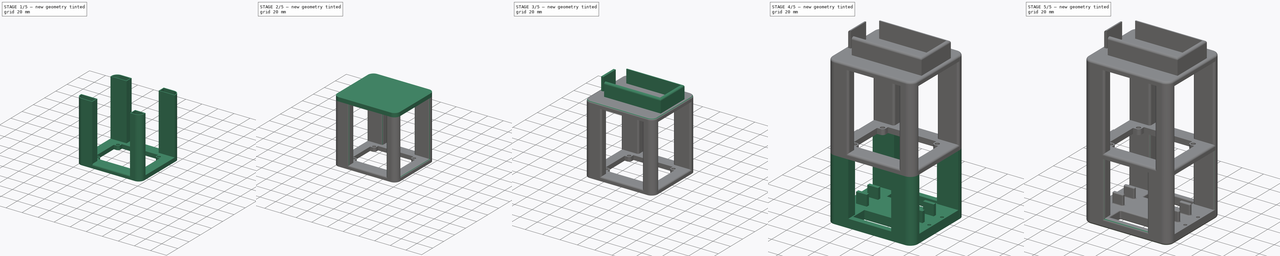
[diagram: build sequence overview — one tinted view per stage of 5, left to right]
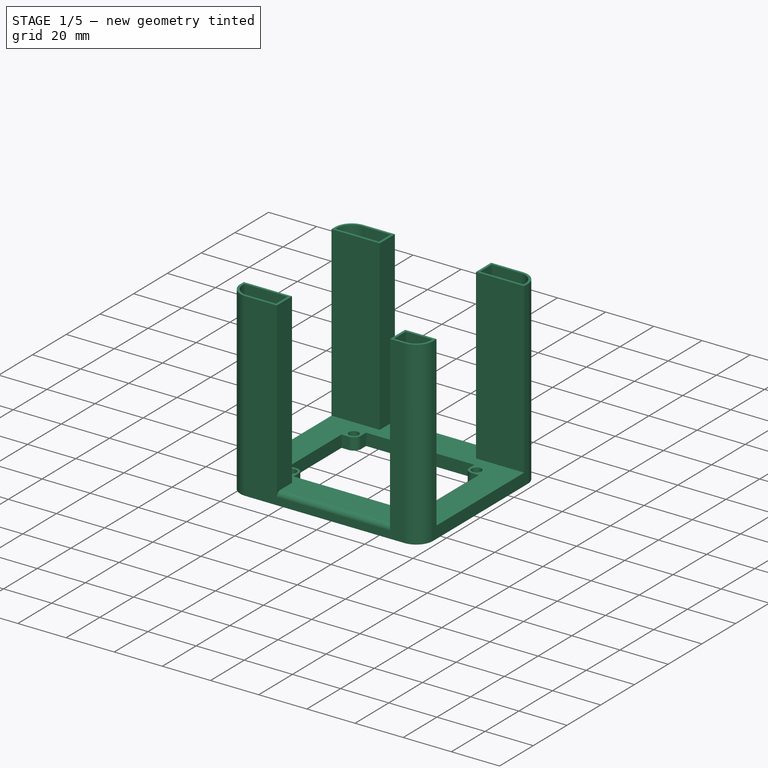
[diagram: stage 1 of 5 — iso view after this stage's code; geometry added in this stage tinted green]
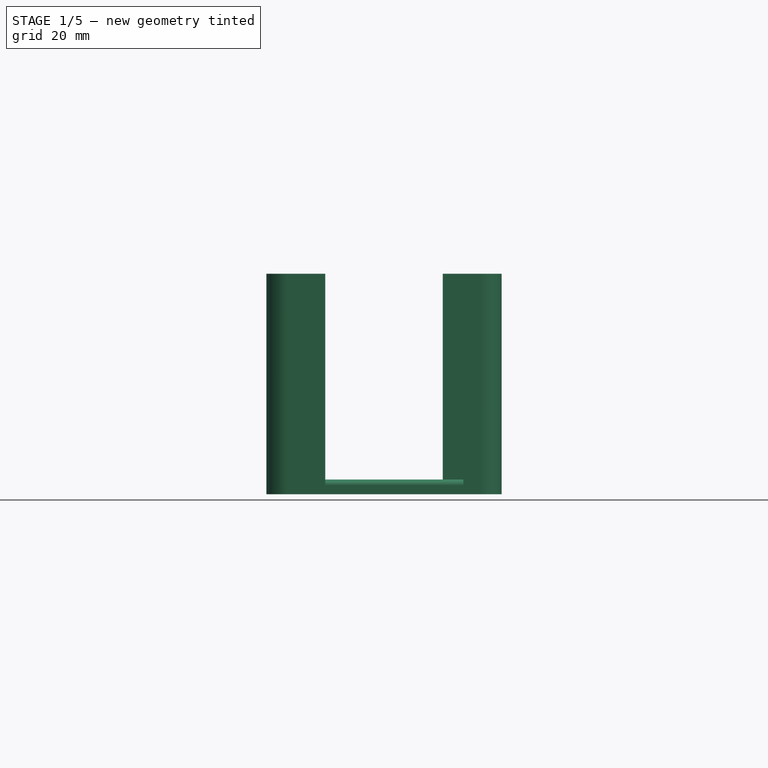
[diagram: stage 1 of 5 — front view after this stage's code; geometry added in this stage tinted green]
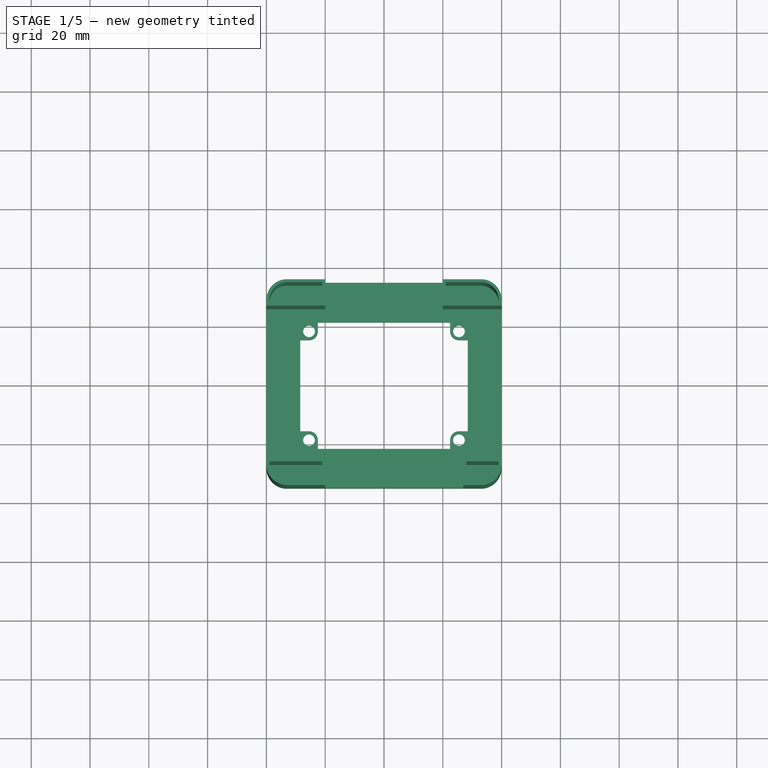
[diagram: stage 1 of 5 — top view after this stage's code; geometry added in this stage tinted green]
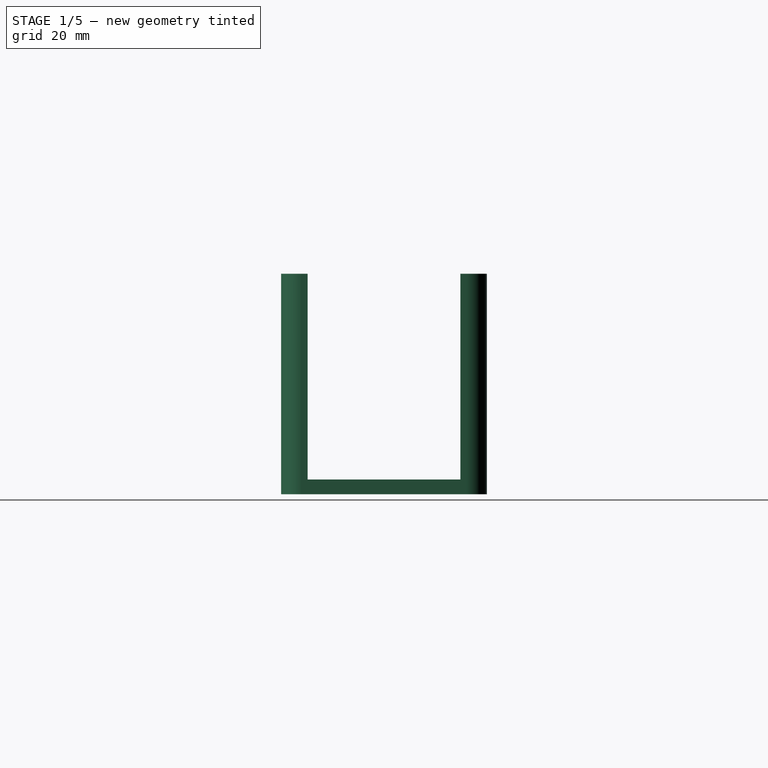
[diagram: stage 1 of 5 — right view after this stage's code; geometry added in this stage tinted green]
FCSTD DOCUMENT  (FreeCAD 0.18.4R)
Label: model
License: All rights reserved
LicenseURL: http://en.wikipedia.org/wiki/All_rights_reserved
objects: PartDesign::Fillet×12, Sketcher::SketchObject×10, PartDesign::Plane×8, PartDesign::Pad×7, PartDesign::Pocket×3, PartDesign::Body×3
note: 53 computed .brp shape members not serialized (recipe doc carries the construction recipe); baked Part::Feature solids carry a one-line shape summary decoded from their .brp

FEATURE [PartDesign::Plane] DatumPlane003
  Length = 94.9666
  MapMode = 5
  Placement = pos=(0,0,58) rot=(0,0,1;0rad)
  ResizeMode = 0
  Width = 84.9666
FEATURE [Sketcher::SketchObject] Sketch005
  MapMode = 5
  Placement = pos=(0,0,58) rot=(0,0,1;0rad)
  Support = -> [DatumPlane003]
  sketch-geometry (32):
    g0: LineSegment StartX=-33 StartY=35 StartZ=0 EndX=33 EndY=35 EndZ=0
    g1: LineSegment StartX=40 StartY=28 StartZ=0 EndX=40 EndY=-28 EndZ=0
    g2: LineSegment StartX=33 StartY=-35 StartZ=0 EndX=-33 EndY=-35 EndZ=0
    g3: LineSegment StartX=-40 StartY=-28 StartZ=0 EndX=-40 EndY=28 EndZ=0
    g4: ArcOfCircle CenterX=-33 CenterY=28 CenterZ=0 NormalX=0 NormalY=0 NormalZ=1 AngleXU=0 Radius=7 StartAngle=1.5708 EndAngle=3.14159
    g5: ArcOfCircle CenterX=33 CenterY=28 CenterZ=0 NormalX=0 NormalY=0 NormalZ=1 AngleXU=0 Radius=7 StartAngle=1e-16 EndAngle=1.5708
    g6: ArcOfCircle CenterX=33 CenterY=-28 CenterZ=0 NormalX=0 NormalY=0 NormalZ=1 AngleXU=0 Radius=7 StartAngle=4.71239 EndAngle=6.28319
    g7: ArcOfCircle CenterX=-33 CenterY=-28 CenterZ=0 NormalX=0 NormalY=0 NormalZ=1 AngleXU=0 Radius=7 StartAngle=3.14159 EndAngle=4.71239
    g8: LineSegment [constr] StartX=-25.5 StartY=18.5 StartZ=0 EndX=25.5 EndY=18.5 EndZ=0
    g9: LineSegment [constr] StartX=25.5 StartY=18.5 StartZ=0 EndX=25.5 EndY=-18.5 EndZ=0
    g10: LineSegment [constr] StartX=25.5 StartY=-18.5 StartZ=0 EndX=-25.5 EndY=-18.5 EndZ=0
    g11: LineSegment [constr] StartX=-25.5 StartY=-18.5 StartZ=0 EndX=-25.5 EndY=18.5 EndZ=0
    g12: Circle CenterX=-25.5 CenterY=18.5 CenterZ=0 NormalX=0 NormalY=0 NormalZ=1 AngleXU=0 Radius=2
    g13: Circle CenterX=-25.5 CenterY=-18.5 CenterZ=0 NormalX=0 NormalY=0 NormalZ=1 AngleXU=0 Radius=2
    g14: Circle CenterX=25.5 CenterY=-18.5 CenterZ=0 NormalX=0 NormalY=0 NormalZ=1 AngleXU=0 Radius=2
    g15: Circle CenterX=25.5 CenterY=18.5 CenterZ=0 NormalX=0 NormalY=0 NormalZ=1 AngleXU=0 Radius=2
    g16: LineSegment StartX=28.5 StartY=15.5 StartZ=0 EndX=28.5 EndY=-15.5 EndZ=0
    g17: LineSegment StartX=22.5 StartY=-21.5 StartZ=0 EndX=-22.5 EndY=-21.5 EndZ=0
    g18: LineSegment StartX=-28.5 StartY=-15.5 StartZ=0 EndX=-28.5 EndY=15.5 EndZ=0
    g19: ArcOfCircle CenterX=-25.5 CenterY=-18.5 CenterZ=0 NormalX=0 NormalY=0 NormalZ=1 AngleXU=0 Radius=3 StartAngle=0 EndAngle=1.5708
    g20: ArcOfCircle CenterX=25.5 CenterY=-18.5 CenterZ=0 NormalX=0 NormalY=0 NormalZ=1 AngleXU=0 Radius=3 StartAngle=1.5708 EndAngle=3.14159
    g21: LineSegment StartX=-22.5 StartY=18.5 StartZ=0 EndX=-22.5 EndY=21.5 EndZ=0
    g22: LineSegment StartX=-25.5 StartY=15.5 StartZ=0 EndX=-28.5 EndY=15.5 EndZ=0
    g23: LineSegment StartX=-25.5 StartY=-15.5 StartZ=0 EndX=-28.5 EndY=-15.5 EndZ=0
    g24: LineSegment StartX=-22.5 StartY=-18.5 StartZ=0 EndX=-22.5 EndY=-21.5 EndZ=0
    g25: ArcOfCircle CenterX=25.5 CenterY=18.5 CenterZ=0 NormalX=0 NormalY=0 NormalZ=1 AngleXU=0 Radius=3 StartAngle=3.14159 EndAngle=4.71239
    g26: LineSegment StartX=25.5 StartY=15.5 StartZ=0 EndX=28.5 EndY=15.5 EndZ=0
    g27: LineSegment StartX=-22.5 StartY=21.5 StartZ=0 EndX=22.5 EndY=21.5 EndZ=0
    g28: ArcOfCircle CenterX=-25.5 CenterY=18.5 CenterZ=0 NormalX=0 NormalY=0 NormalZ=1 AngleXU=0 Radius=3 StartAngle=4.71239 EndAngle=6.28319
    g29: LineSegment StartX=22.5 StartY=21.5 StartZ=0 EndX=22.5 EndY=18.5 EndZ=0
    g30: LineSegment StartX=22.5 StartY=-18.5 StartZ=0 EndX=22.5 EndY=-21.5 EndZ=0
    g31: LineSegment StartX=25.5 StartY=-15.5 StartZ=0 EndX=28.5 EndY=-15.5 EndZ=0
  constraints (84):
    c: Horizontal(g0)
    c: Vertical(g1)
    c: Tangent(g0,g4) = 1.5708
    c: Tangent(g3,g4) = 1.5708
    c: Tangent(g0,g5) = 1.5708
    c: Tangent(g1,g5) = 1.5708
    c: Tangent(g1,g6) = 1.5708
    c: Tangent(g2,g6) = 1.5708
    c: Tangent(g2,g7) = 1.5708
    c: Tangent(g3,g7) = 1.5708
    c: Equal(g7,g4)
    c: Equal(g4,g5)
    c: Equal(g5,g6)
    c: Radius(g4) = 7
    c: DistanceX(g3,g1) = 80
    c: DistanceY(g2,g0) = 70
    c: Symmetric(g0,g2,g-1)
    c: Symmetric(g3,g1,g-2)
    c: Coincident(g8,g9)
    c: Coincident(g9,g10)
    c: Coincident(g10,g11)
    c: Coincident(g11,g8)
    c: Horizontal(g8)
    c: Vertical(g9)
    c: DistanceX(g8,g8) = 51
    c: DistanceY(g9,g9) = 37
    c: Coincident(g12,g8)
    c: Coincident(g13,g10)
    c: Coincident(g14,g9)
    c: Coincident(g15,g8)
    c: Equal(g12,g13)
    c: Equal(g13,g14)
    c: Equal(g14,g15)
    c: Radius(g12) = 2
    c: Symmetric(g12,g13,g-1)
    c: Symmetric(g13,g14,g-2)
    c: Vertical(g16)
    c: Coincident(g19,g13)
    c: Coincident(g20,g14)
    c: Equal(g20,g19)
    c: Vertical(g21)
    c: Horizontal(g22)
    c: PointOnObject(g23,g19)
    c: Horizontal(g23)
    c: PointOnObject(g24,g19)
    c: Tangent(g24,g19)
    c: Coincident(g25,g15)
    c: Horizontal(g26)
    c: Equal(g26,g21)
    c: Equal(g21,g22)
    c: Equal(g22,g23)
    c: Equal(g23,g24)
    c: Coincident(g18,g22)
    c: Coincident(g27,g21)
    c: Coincident(g16,g26)
    c: Coincident(g25,g26)
    c: PointOnObject(g20,g9)
    c: PointOnObject(g20,g10)
    c: Coincident(g18,g23)
    c: PointOnObject(g19,g10)
    c: PointOnObject(g19,g11)
    c: Coincident(g17,g24)
    c: Coincident(g28,g12)
    c: Radius(g28) = 3
    c: PointOnObject(g28,g22)
    c: PointOnObject(g28,g21)
    c: Parallel(g18,g16)
    c: Parallel(g27,g17)
    c: DistanceX(g18,g16) = 57
    c: DistanceY(g17,g21) = 43
    c: Symmetric(g21,g17,g-1)
    c: Symmetric(g16,g18,g-2)
    c: DistanceY(g21,g21) = 3
    c: Coincident(g29,g27)
    c: Coincident(g29,g25)
    c: Vertical(g29)
    c: Equal(g29,g21)
    c: Coincident(g30,g20)
    c: Coincident(g30,g17)
    c: Vertical(g30)
    c: Equal(g30,g29)
    c: Coincident(g31,g20)
    c: Coincident(g31,g16)
    c: Horizontal(g31)
FEATURE [PartDesign::Pad] Pad003
  Length = 5
  Length2 = 100
  Placement = pos=(0,0,58) rot=(0,0,1;0rad)
  Profile = -> Sketch005
  Type = 0
FEATURE [PartDesign::Plane] DatumPlane004
  Length = 94.9666
  MapMode = 5
  Placement = pos=(0,0,63) rot=(0,0,1;0rad)
  ResizeMode = 0
  Support = -> [Pad003]
  Width = 84.9666
FEATURE [Sketcher::SketchObject] Sketch006
  MapMode = 5
  Placement = pos=(0,0,63) rot=(0,0,1;0rad)
  Support = -> [DatumPlane004]
  sketch-geometry (20):
    g0: LineSegment StartX=20 StartY=35 StartZ=0 EndX=33 EndY=35 EndZ=0
    g1: LineSegment StartX=40 StartY=28 StartZ=0 EndX=40 EndY=26 EndZ=0
    g2: LineSegment StartX=40 StartY=26 StartZ=0 EndX=20 EndY=26 EndZ=0
    g3: LineSegment StartX=20 StartY=26 StartZ=0 EndX=20 EndY=35 EndZ=0
    g4: LineSegment StartX=-20 StartY=-26 StartZ=0 EndX=-40 EndY=-26 EndZ=0
    g5: LineSegment StartX=-40 StartY=-26 StartZ=0 EndX=-40 EndY=-28 EndZ=0
    g6: LineSegment StartX=-33 StartY=-35 StartZ=0 EndX=-20 EndY=-35 EndZ=0
    g7: LineSegment StartX=-20 StartY=-35 StartZ=0 EndX=-20 EndY=-26 EndZ=0
    g8: LineSegment StartX=-20 StartY=26 StartZ=0 EndX=-40 EndY=26 EndZ=0
    g9: LineSegment StartX=-40 StartY=26 StartZ=0 EndX=-40 EndY=28 EndZ=0
    g10: LineSegment StartX=-33 StartY=35 StartZ=0 EndX=-20 EndY=35 EndZ=0
    g11: LineSegment StartX=-20 StartY=35 StartZ=0 EndX=-20 EndY=26 EndZ=0
    g12: ArcOfCircle CenterX=-33 CenterY=28 CenterZ=0 NormalX=0 NormalY=0 NormalZ=1 AngleXU=0 Radius=7 StartAngle=1.5708 EndAngle=3.14159
    g13: ArcOfCircle CenterX=33 CenterY=28 CenterZ=0 NormalX=0 NormalY=0 NormalZ=1 AngleXU=0 Radius=7 StartAngle=0 EndAngle=1.5708
    g14: ArcOfCircle CenterX=-33 CenterY=-28 CenterZ=0 NormalX=0 NormalY=0 NormalZ=1 AngleXU=0 Radius=7 StartAngle=3.14159 EndAngle=4.71239
    g15: LineSegment StartX=27 StartY=-26 StartZ=0 EndX=40 EndY=-26 EndZ=0
    g16: LineSegment StartX=40 StartY=-26 StartZ=0 EndX=40 EndY=-28 EndZ=0
    g17: LineSegment StartX=33 StartY=-35 StartZ=0 EndX=27 EndY=-35 EndZ=0
    g18: LineSegment StartX=27 StartY=-35 StartZ=0 EndX=27 EndY=-26 EndZ=0
    g19: ArcOfCircle CenterX=33 CenterY=-28 CenterZ=0 NormalX=0 NormalY=0 NormalZ=1 AngleXU=0 Radius=7 StartAngle=4.71239 EndAngle=6.28319
  constraints (53):
    c: Coincident(g1,g2)
    c: Coincident(g2,g3)
    c: Coincident(g3,g0)
    c: Horizontal(g0)
    c: Horizontal(g2)
    c: Vertical(g1)
    c: Vertical(g3)
    c: Coincident(g4,g5)
    c: Coincident(g6,g7)
    c: Coincident(g7,g4)
    c: Horizontal(g6)
    c: Vertical(g5)
    c: Vertical(g7)
    c: Coincident(g8,g9)
    c: Coincident(g10,g11)
    c: Coincident(g11,g8)
    c: Horizontal(g8)
    c: Horizontal(g10)
    c: Vertical(g9)
    c: Vertical(g11)
    c: Symmetric(g8,g2,g-2)
    c: Symmetric(g4,g8,g-1)
    c: DistanceX(g8,g8) = 20
    c: DistanceY(g11,g11) = 9
    c: Tangent(g9,g12) = 1.5708
    c: Tangent(g10,g12) = 1.5708
    c: Tangent(g0,g13) = 1.5708
    c: Tangent(g1,g13) = 1.5708
    c: Tangent(g5,g14) = -1.5708
    c: Tangent(g6,g14) = -1.5708
    c: Radius(g12) = 7
    c: Equal(g12,g13)
    c: Equal(g13,g14)
    c: Equal(g11,g3)
    c: Equal(g3,g7)
    c: Equal(g4,g8)
    c: Equal(g8,g2)
    c: DistanceY(g6,g10) = 70
    c: DistanceX(g8,g1) = 80
    c: Coincident(g15,g16)
    c: Coincident(g17,g18)
    c: Coincident(g18,g15)
    c: Horizontal(g15)
    c: Horizontal(g17)
    c: Vertical(g16)
    c: Vertical(g18)
    c: Equal(g18,g7)
    c: Symmetric(g1,g15,g-1)
    c: Symmetric(g15,g4,g-2)
    c: Tangent(g16,g19) = 1.5708
    c: Tangent(g17,g19) = 1.5708
    c: Equal(g19,g14)
    c: DistanceX(g15,g15) = 13
FEATURE [PartDesign::Pad] Pad004
  BaseFeature = -> Pad003
  Length = 70
  Length2 = 100
  Placement = pos=(0,0,58) rot=(0,0,1;0rad)
  Profile = -> Sketch006
  Type = 0
FEATURE [PartDesign::Plane] DatumPlane005
  Length = 94.9666
  MapMode = 5
  Placement = pos=(0,0,133) rot=(0,0,1;0rad)
  ResizeMode = 0
  Support = -> [Pad004]
  Width = 84.9666
FEATURE [Sketcher::SketchObject] Sketch007
  MapMode = 5
  Placement = pos=(0,0,133) rot=(0,0,1;0rad)
  Support = -> [DatumPlane005]
  sketch-geometry (20):
    g0: LineSegment StartX=21 StartY=34 StartZ=0 EndX=33 EndY=34 EndZ=0
    g1: LineSegment StartX=39 StartY=28 StartZ=0 EndX=39 EndY=27 EndZ=0
    g2: LineSegment StartX=39 StartY=27 StartZ=0 EndX=21 EndY=27 EndZ=0
    g3: LineSegment StartX=21 StartY=27 StartZ=0 EndX=21 EndY=34 EndZ=0
    g4: LineSegment StartX=-21 StartY=-27 StartZ=0 EndX=-39 EndY=-27 EndZ=0
    g5: LineSegment StartX=-39 StartY=-27 StartZ=0 EndX=-39 EndY=-28 EndZ=0
    g6: LineSegment StartX=-33 StartY=-34 StartZ=0 EndX=-21 EndY=-34 EndZ=0
    g7: LineSegment StartX=-21 StartY=-34 StartZ=0 EndX=-21 EndY=-27 EndZ=0
    g8: LineSegment StartX=-21 StartY=27 StartZ=0 EndX=-39 EndY=27 EndZ=0
    g9: LineSegment StartX=-39 StartY=27 StartZ=0 EndX=-39 EndY=28 EndZ=0
    g10: LineSegment StartX=-33 StartY=34 StartZ=0 EndX=-21 EndY=34 EndZ=0
    g11: LineSegment StartX=-21 StartY=34 StartZ=0 EndX=-21 EndY=27 EndZ=0
    g12: ArcOfCircle CenterX=-33 CenterY=28 CenterZ=0 NormalX=0 NormalY=0 NormalZ=1 AngleXU=0 Radius=6 StartAngle=1.5708 EndAngle=3.14159
    g13: ArcOfCircle CenterX=33 CenterY=28 CenterZ=0 NormalX=0 NormalY=0 NormalZ=1 AngleXU=0 Radius=6 StartAngle=0 EndAngle=1.5708
    g14: ArcOfCircle CenterX=-33 CenterY=-28 CenterZ=0 NormalX=0 NormalY=0 NormalZ=1 AngleXU=0 Radius=6 StartAngle=3.14159 EndAngle=4.71239
    g15: LineSegment StartX=28 StartY=-27 StartZ=0 EndX=39 EndY=-27 EndZ=0
    g16: LineSegment StartX=39 StartY=-27 StartZ=0 EndX=39 EndY=-28 EndZ=0
    g17: LineSegment StartX=33 StartY=-34 StartZ=0 EndX=28 EndY=-34 EndZ=0
    g18: LineSegment StartX=28 StartY=-34 StartZ=0 EndX=28 EndY=-27 EndZ=0
    g19: ArcOfCircle CenterX=33 CenterY=-28 CenterZ=0 NormalX=0 NormalY=0 NormalZ=1 AngleXU=0 Radius=6 StartAngle=4.71239 EndAngle=6.28319
  constraints (53):
    c: Coincident(g1,g2)
    c: Coincident(g2,g3)
    c: Coincident(g3,g0)
    c: Horizontal(g0)
    c: Horizontal(g2)
    c: Vertical(g1)
    c: Vertical(g3)
    c: Coincident(g4,g5)
    c: Coincident(g6,g7)
    c: Coincident(g7,g4)
    c: Horizontal(g6)
    c: Vertical(g5)
    c: Vertical(g7)
    c: Coincident(g8,g9)
    c: Coincident(g10,g11)
    c: Coincident(g11,g8)
    c: Horizontal(g8)
    c: Horizontal(g10)
    c: Vertical(g9)
    c: Vertical(g11)
    c: Symmetric(g8,g2,g-2)
    c: Symmetric(g4,g8,g-1)
    c: Tangent(g9,g12) = 1.5708
    c: Tangent(g10,g12) = 1.5708
    c: Tangent(g0,g13) = 1.5708
    c: Tangent(g1,g13) = 1.5708
    c: Tangent(g5,g14) = -1.5708
    c: Tangent(g6,g14) = -1.5708
    c: Equal(g12,g13)
    c: Equal(g13,g14)
    c: Equal(g11,g3)
    c: Equal(g3,g7)
    c: Equal(g4,g8)
    c: Equal(g8,g2)
    c: Coincident(g15,g16)
    c: Coincident(g17,g18)
    c: Coincident(g18,g15)
    c: Horizontal(g15)
    c: Horizontal(g17)
    c: Vertical(g16)
    c: Vertical(g18)
    c: Equal(g18,g7)
    c: Symmetric(g1,g15,g-1)
    c: Symmetric(g15,g4,g-2)
    c: Tangent(g16,g19) = 1.5708
    c: Tangent(g17,g19) = 1.5708
    c: Equal(g19,g14)
    c: DistanceY(g6,g10) = 68
    c: DistanceX(g8,g1) = 78
    c: DistanceY(g11,g11) = 7
    c: DistanceX(g8,g8) = 18
    c: DistanceX(g15,g15) = 11
    c: Radius(g12) = 6
FEATURE [PartDesign::Pocket] Pocket001
  BaseFeature = -> Pad004
  Length = 70
  Length2 = 100
  Placement = pos=(0,0,58) rot=(0,0,1;0rad)
  Profile = -> Sketch007
  Type = 0
FEATURE [PartDesign::Body] Body002  label="battery"
  Group = -> [DatumPlane010,Sketch016,Pad009,DatumPlane011,Sketch014,Pad010,DatumPlane012,Sketch015,Pocket004,Fillet014,Fillet015,Fillet016]
  Origin = -> Origin002
  Tip = -> Fillet016
FEATURE [PartDesign::Fillet] Fillet017
  Base = -> Pocket001 [Edge43]
  BaseFeature = -> Pocket001
  Placement = pos=(0,0,58) rot=(0,0,1;0rad)
  Radius = 2
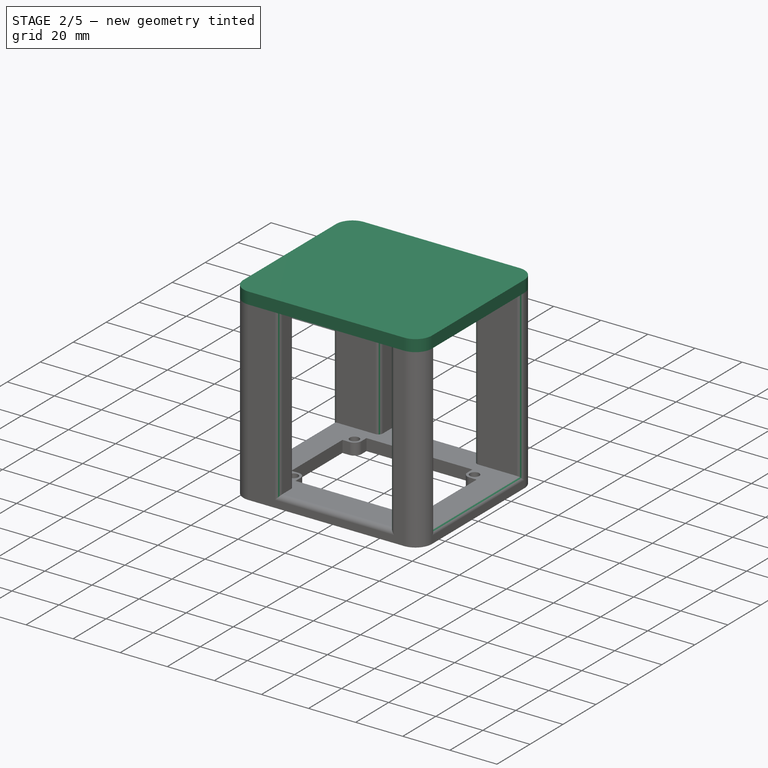
[diagram: stage 2 of 5 — iso view after this stage's code; geometry added in this stage tinted green]
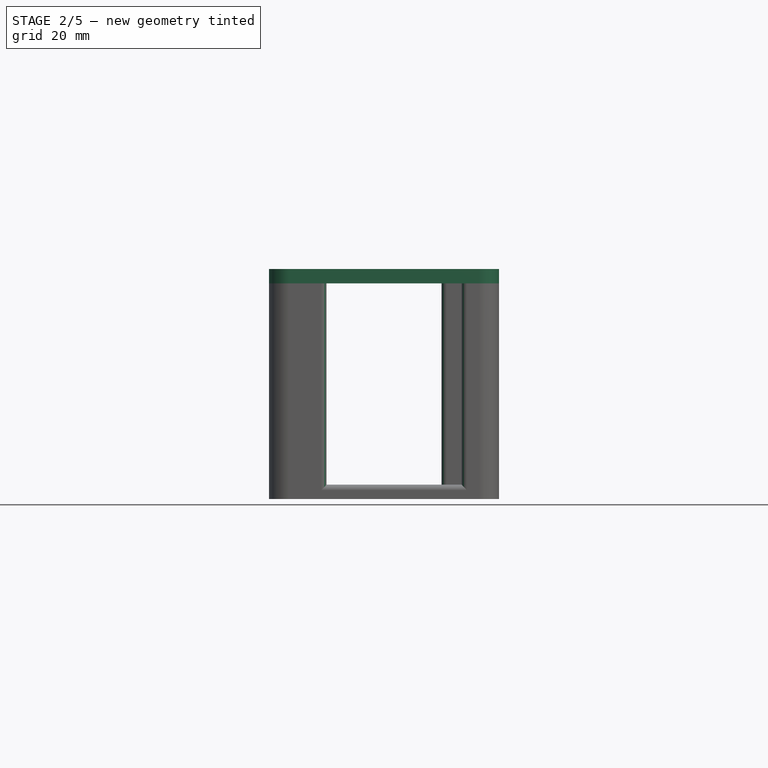
[diagram: stage 2 of 5 — front view after this stage's code; geometry added in this stage tinted green]
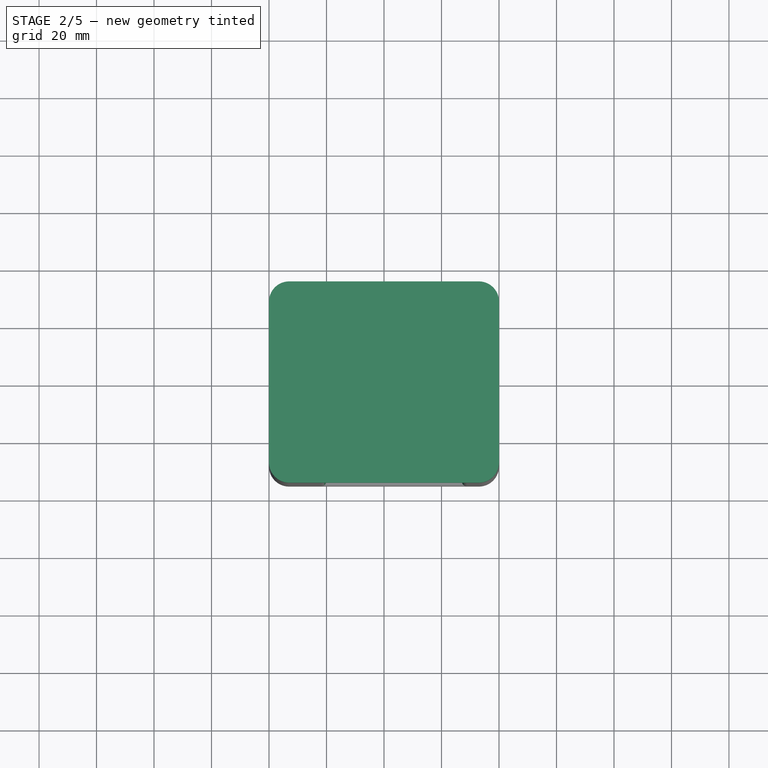
[diagram: stage 2 of 5 — top view after this stage's code; geometry added in this stage tinted green]
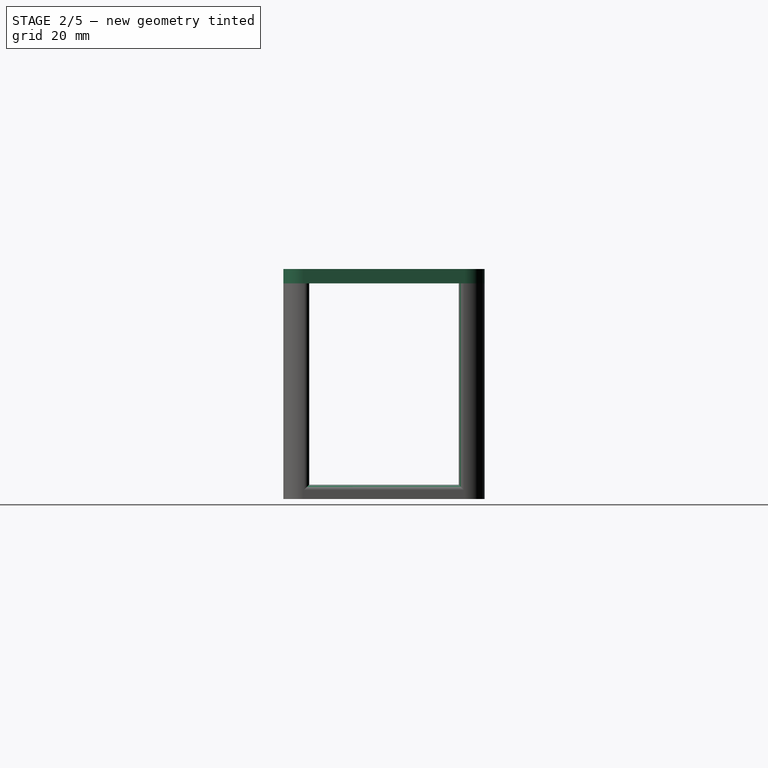
[diagram: stage 2 of 5 — right view after this stage's code; geometry added in this stage tinted green]
FEATURE [PartDesign::Body] Body  label="Motors"
  Group = -> [Sketch,Pad,DatumPlane,Sketch001,Pad001,Pad002,DatumPlane002,Sketch003,Pocket,Sketch004,Fillet,Fillet011,Fillet012,Fillet013]
  Origin = -> Origin
  Tip = -> Fillet013
FEATURE [PartDesign::Plane] DatumPlane010
  Length = 94.9666
  MapMode = 5
  Placement = pos=(0,0,133) rot=(0,0,1;0rad)
  ResizeMode = 0
  Width = 84.9666
FEATURE [Sketcher::SketchObject] Sketch016
  MapMode = 5
  Placement = pos=(0,0,133) rot=(0,0,1;0rad)
  Support = -> [DatumPlane010]
  sketch-geometry (8):
    g0: LineSegment StartX=-33 StartY=35 StartZ=0 EndX=33 EndY=35 EndZ=0
    g1: LineSegment StartX=40 StartY=28 StartZ=0 EndX=40 EndY=-28 EndZ=0
    g2: LineSegment StartX=33 StartY=-35 StartZ=0 EndX=-33 EndY=-35 EndZ=0
    g3: LineSegment StartX=-40 StartY=-28 StartZ=0 EndX=-40 EndY=28 EndZ=0
    g4: ArcOfCircle CenterX=-33 CenterY=28 CenterZ=0 NormalX=0 NormalY=0 NormalZ=1 AngleXU=0 Radius=7 StartAngle=1.5708 EndAngle=3.14159
    g5: ArcOfCircle CenterX=-33 CenterY=-28 CenterZ=0 NormalX=0 NormalY=0 NormalZ=1 AngleXU=0 Radius=7 StartAngle=3.14159 EndAngle=4.71239
    g6: ArcOfCircle CenterX=33 CenterY=-28 CenterZ=0 NormalX=0 NormalY=0 NormalZ=1 AngleXU=0 Radius=7 StartAngle=4.71239 EndAngle=6.28319
    g7: ArcOfCircle CenterX=33 CenterY=28 CenterZ=0 NormalX=0 NormalY=0 NormalZ=1 AngleXU=0 Radius=7 StartAngle=0 EndAngle=1.5708
  constraints (18):
    c: Horizontal(g2)
    c: Vertical(g1)
    c: Tangent(g0,g4) = 1.5708
    c: Tangent(g3,g4) = 1.5708
    c: Tangent(g2,g5) = 1.5708
    c: Tangent(g3,g5) = 1.5708
    c: Tangent(g1,g6) = 1.5708
    c: Tangent(g2,g6) = 1.5708
    c: Tangent(g0,g7) = 1.5708
    c: Tangent(g1,g7) = 1.5708
    c: Parallel(g0,g2)
    c: Parallel(g3,g1)
    c: Symmetric(g0,g2,g-1)
    c: Symmetric(g3,g1,g-2)
    c: Radius(g4) = 7
    c: DistanceX(g3,g1) = 80
    c: DistanceY(g2,g0) = 70
    c: Equal(g6,g5)
FEATURE [PartDesign::Pad] Pad009
  Length = 5
  Length2 = 100
  Placement = pos=(0,0,133) rot=(0,0,1;0rad)
  Profile = -> Sketch016
  Type = 0
FEATURE [PartDesign::Fillet] Fillet018
  Base = -> Fillet017 [Edge35,Edge37,Edge43,Edge45,Edge41,Edge52]
  BaseFeature = -> Fillet017
  Placement = pos=(0,0,58) rot=(0,0,1;0rad)
  Radius = 1.9
FEATURE [PartDesign::Fillet] Fillet019
  Base = -> Fillet018 [Edge12,Edge6]
  BaseFeature = -> Fillet018
  Placement = pos=(0,0,58) rot=(0,0,1;0rad)
  Radius = 1.9
FEATURE [PartDesign::Fillet] Fillet020
  Base = -> Fillet019 [Edge3]
  BaseFeature = -> Fillet019
  Placement = pos=(0,0,58) rot=(0,0,1;0rad)
  Radius = 1.9
FEATURE [PartDesign::Fillet] Fillet021
  Base = -> Fillet020 [Edge43,Edge37,Edge48,Edge46,Edge39,Edge54]
  BaseFeature = -> Fillet020
  Placement = pos=(0,0,58) rot=(0,0,1;0rad)
  Radius = 1.89
FEATURE [PartDesign::Body] Body001  label="PCB"
  Group = -> [DatumPlane003,Sketch005,Pad003,DatumPlane004,Sketch006,Pad004,DatumPlane005,Sketch007,Pocket001,Fillet017,Fillet018,Fillet019,Fillet020,Fillet021]
  Origin = -> Origin001
  Tip = -> Fillet021
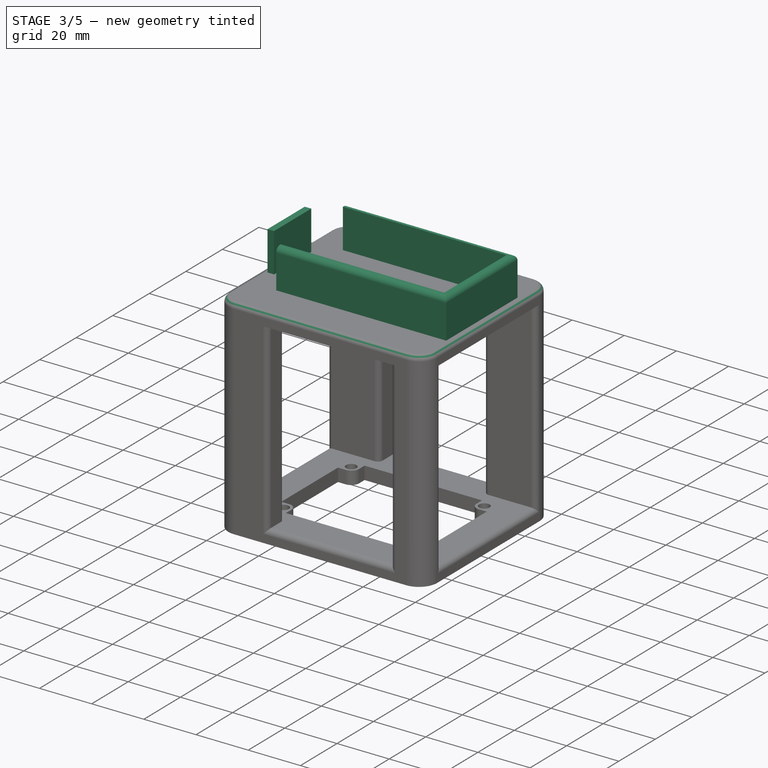
[diagram: stage 3 of 5 — iso view after this stage's code; geometry added in this stage tinted green]
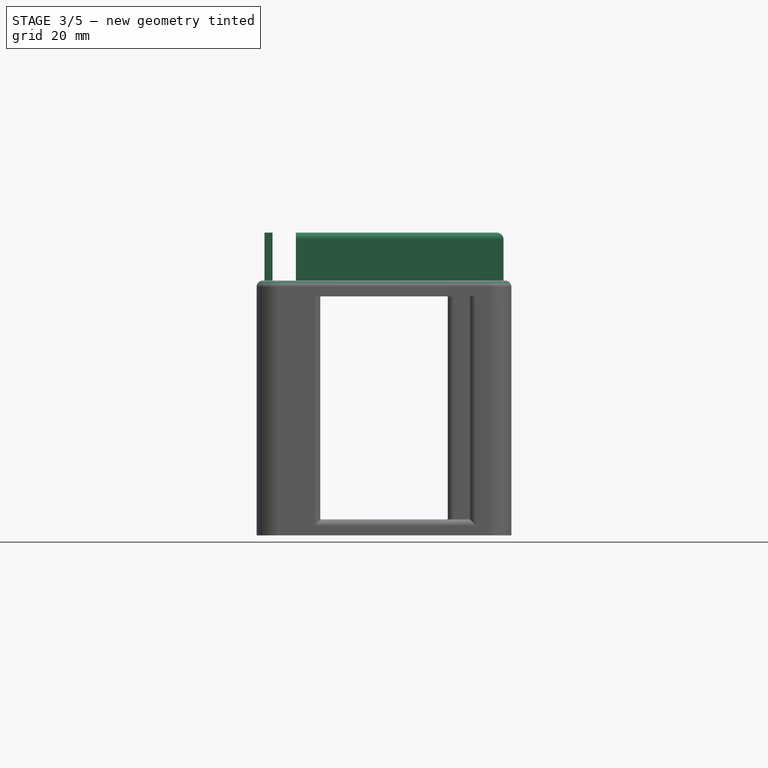
[diagram: stage 3 of 5 — front view after this stage's code; geometry added in this stage tinted green]
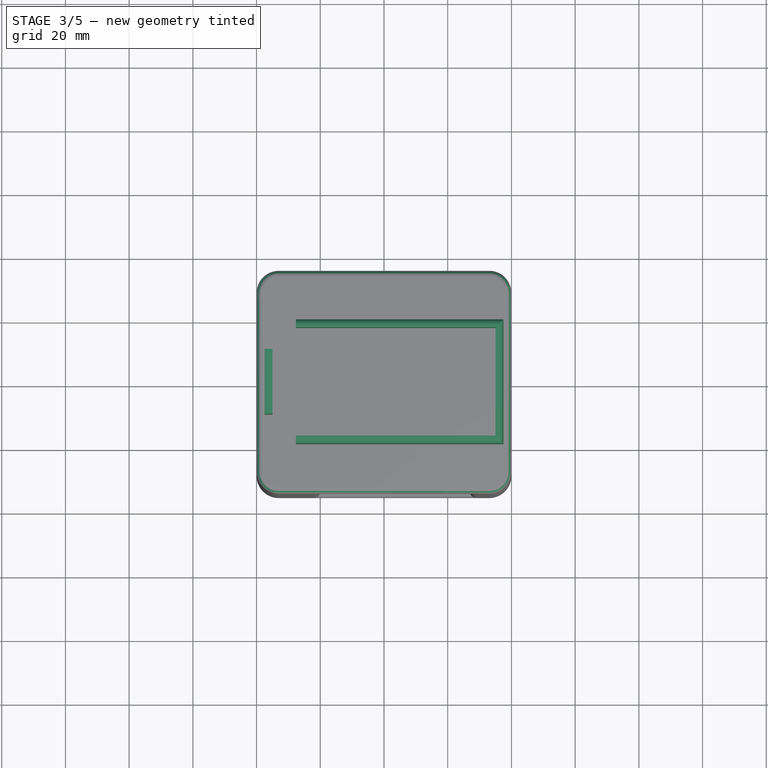
[diagram: stage 3 of 5 — top view after this stage's code; geometry added in this stage tinted green]
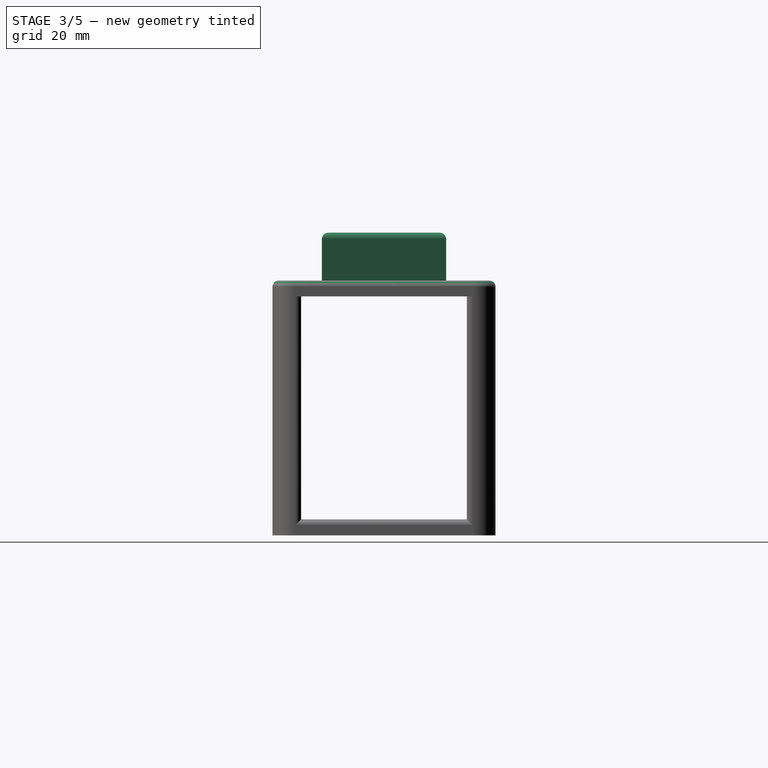
[diagram: stage 3 of 5 — right view after this stage's code; geometry added in this stage tinted green]
FEATURE [PartDesign::Plane] DatumPlane011
  Length = 94.9666
  MapMode = 5
  Placement = pos=(0,0,139) rot=(0,0,1;0rad)
  ResizeMode = 0
  Support = -> [Pad009]
  Width = 84.9666
FEATURE [Sketcher::SketchObject] Sketch014
  MapMode = 5
  Placement = pos=(0,0,139) rot=(0,0,1;0rad)
  Support = -> [DatumPlane011]
  sketch-geometry (8):
    g0: LineSegment StartX=-35 StartY=17 StartZ=0 EndX=35 EndY=17 EndZ=0
    g1: LineSegment StartX=35 StartY=17 StartZ=0 EndX=35 EndY=-17 EndZ=0
    g2: LineSegment StartX=35 StartY=-17 StartZ=0 EndX=-35 EndY=-17 EndZ=0
    g3: LineSegment StartX=-35 StartY=-17 StartZ=0 EndX=-35 EndY=17 EndZ=0
    g4: LineSegment StartX=-37.5 StartY=19.5 StartZ=0 EndX=37.5 EndY=19.5 EndZ=0
    g5: LineSegment StartX=37.5 StartY=19.5 StartZ=0 EndX=37.5 EndY=-19.5 EndZ=0
    g6: LineSegment StartX=37.5 StartY=-19.5 StartZ=0 EndX=-37.5 EndY=-19.5 EndZ=0
    g7: LineSegment StartX=-37.5 StartY=-19.5 StartZ=0 EndX=-37.5 EndY=19.5 EndZ=0
  constraints (20):
    c: Coincident(g0,g1)
    c: Coincident(g1,g2)
    c: Coincident(g2,g3)
    c: Coincident(g3,g0)
    c: Horizontal(g2)
    c: Vertical(g1)
    c: DistanceX(g0,g0) = 70
    c: DistanceY(g1,g1) = 34
    c: Symmetric(g0,g2,g-1)
    c: Symmetric(g0,g0,g-2)
    c: Coincident(g4,g5)
    c: Coincident(g5,g6)
    c: Coincident(g6,g7)
    c: Coincident(g7,g4)
    c: Horizontal(g6)
    c: Vertical(g5)
    c: Symmetric(g4,g4,g-2)
    c: Symmetric(g4,g6,g-1)
    c: DistanceX(g4,g4) = 75
    c: DistanceY(g7,g7) = 39
FEATURE [PartDesign::Pad] Pad010
  BaseFeature = -> Pad009
  Length = 15
  Length2 = 100
  Placement = pos=(0,0,133) rot=(0,0,1;0rad)
  Profile = -> Sketch014
  Type = 0
FEATURE [PartDesign::Plane] DatumPlane012
  Length = 94.9666
  MapMode = 5
  Placement = pos=(0,0,154) rot=(0,0,1;0rad)
  ResizeMode = 0
  Support = -> [Pad010]
  Width = 84.9666
FEATURE [Sketcher::SketchObject] Sketch015
  MapMode = 5
  Placement = pos=(0,0,154) rot=(0,0,1;0rad)
  Support = -> [DatumPlane012]
  sketch-geometry (8):
    g0: LineSegment StartX=-39.0263 StartY=22.4167 StartZ=0 EndX=-27.6441 EndY=22.4167 EndZ=0
    g1: LineSegment StartX=-27.6441 StartY=22.4167 StartZ=0 EndX=-27.6441 EndY=10.1829 EndZ=0
    g2: LineSegment StartX=-27.6441 StartY=10.1829 StartZ=0 EndX=-39.0263 EndY=10.1829 EndZ=0
    g3: LineSegment StartX=-39.0263 StartY=10.1829 StartZ=0 EndX=-39.0263 EndY=22.4167 EndZ=0
    g4: LineSegment StartX=-39.0263 StartY=-10.1829 StartZ=0 EndX=-27.6441 EndY=-10.1829 EndZ=0
    g5: LineSegment StartX=-27.6441 StartY=-10.1829 StartZ=0 EndX=-27.6441 EndY=-22.4167 EndZ=0
    g6: LineSegment StartX=-27.6441 StartY=-22.4167 StartZ=0 EndX=-39.0263 EndY=-22.4167 EndZ=0
    g7: LineSegment StartX=-39.0263 StartY=-22.4167 StartZ=0 EndX=-39.0263 EndY=-10.1829 EndZ=0
  constraints (19):
    c: Coincident(g0,g1)
    c: Coincident(g1,g2)
    c: Coincident(g2,g3)
    c: Coincident(g3,g0)
    c: Horizontal(g0)
    c: Horizontal(g2)
    c: Vertical(g1)
    c: Vertical(g3)
    c: Coincident(g4,g5)
    c: Coincident(g5,g6)
    c: Coincident(g6,g7)
    c: Coincident(g7,g4)
    c: Horizontal(g4)
    c: Horizontal(g6)
    c: Vertical(g5)
    c: Vertical(g7)
    c: Equal(g4,g0)
    c: Equal(g3,g7)
    c: Symmetric(g0,g6,g-1)
FEATURE [PartDesign::Pocket] Pocket004
  BaseFeature = -> Pad010
  Length = 15
  Length2 = 100
  Placement = pos=(0,0,133) rot=(0,0,1;0rad)
  Profile = -> Sketch015
  Type = 0
FEATURE [PartDesign::Fillet] Fillet014
  Base = -> Pocket004 [Edge4,Edge7,Edge16,Edge18,Edge20,Edge10,Edge17,Edge19]
  BaseFeature = -> Pocket004
  Placement = pos=(0,0,133) rot=(0,0,1;0rad)
  Radius = 2
FEATURE [PartDesign::Fillet] Fillet015
  Base = -> Fillet014 [Edge65,Edge68,Edge70]
  BaseFeature = -> Fillet014
  Placement = pos=(0,0,133) rot=(0,0,1;0rad)
  Radius = 2
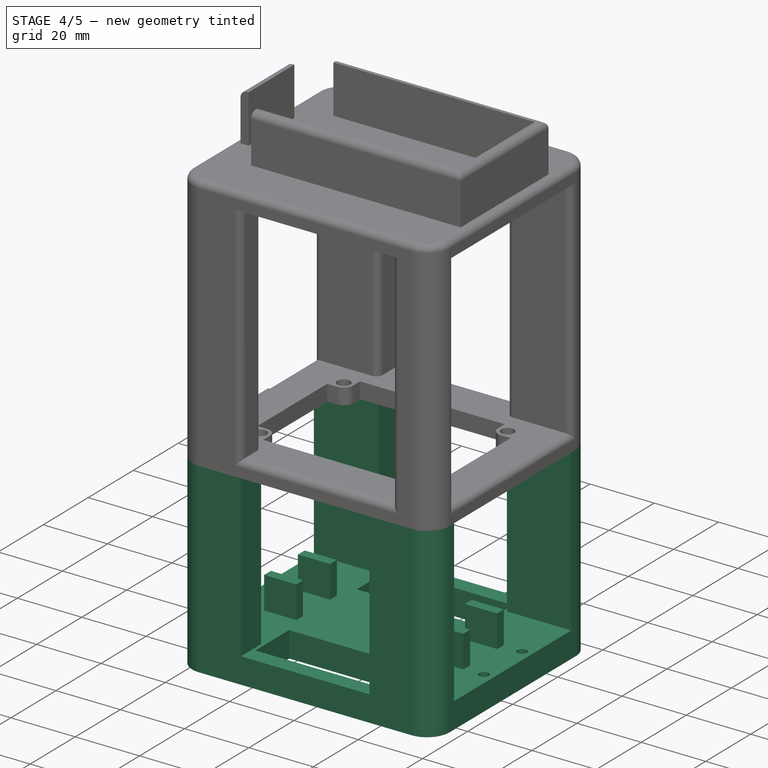
[diagram: stage 4 of 5 — iso view after this stage's code; geometry added in this stage tinted green]
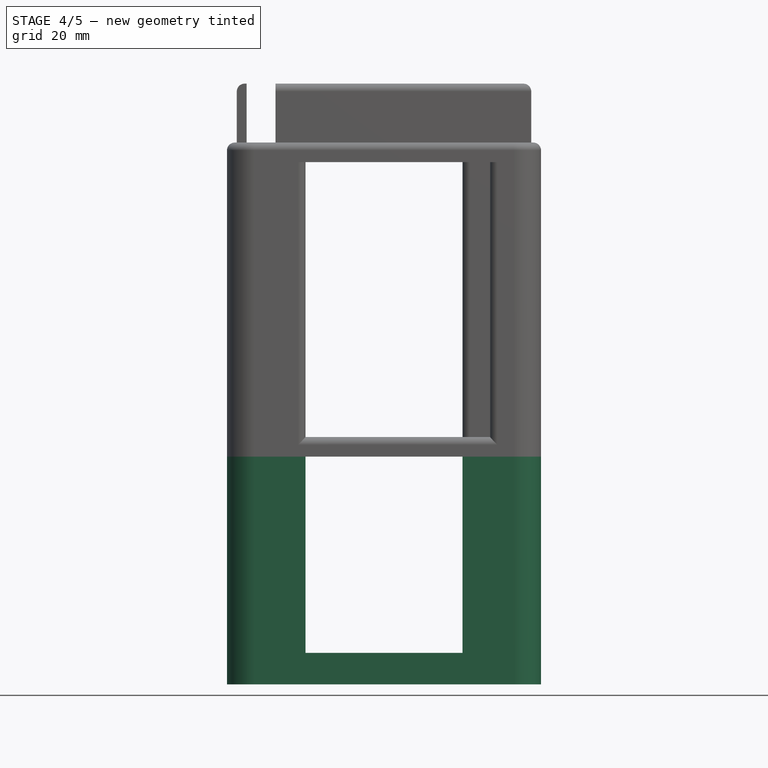
[diagram: stage 4 of 5 — front view after this stage's code; geometry added in this stage tinted green]
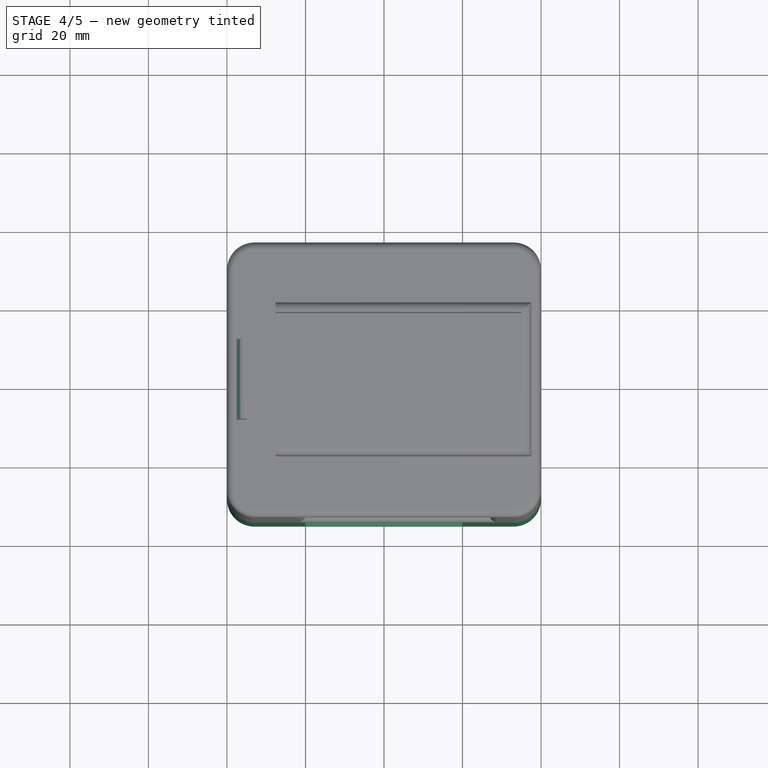
[diagram: stage 4 of 5 — top view after this stage's code; geometry added in this stage tinted green]
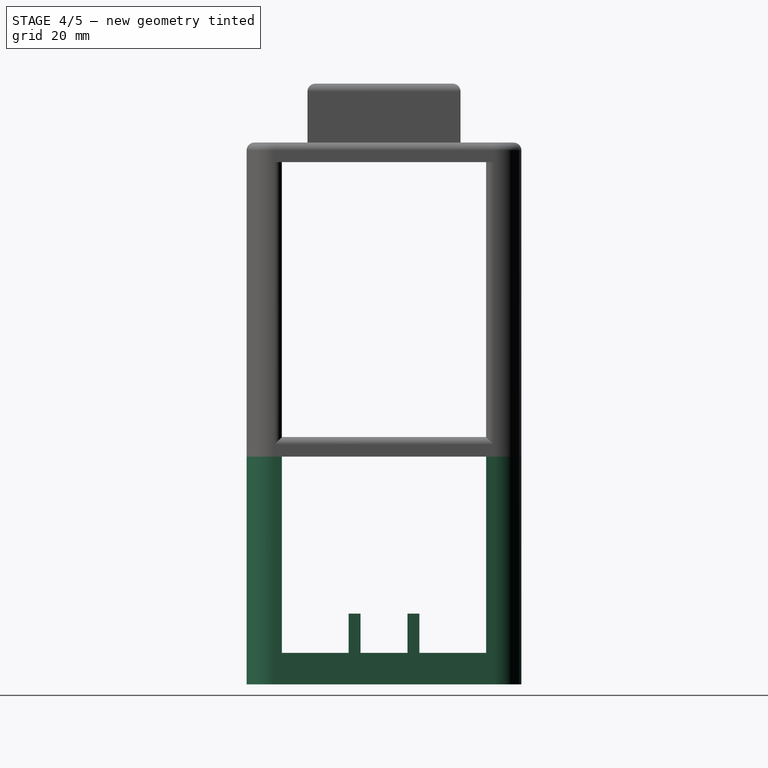
[diagram: stage 4 of 5 — right view after this stage's code; geometry added in this stage tinted green]
FEATURE [Sketcher::SketchObject] Sketch  label="base"
  MapMode = 5
  Support = -> [XY_Plane]
  sketch-geometry (26):
    g0: LineSegment StartX=-33 StartY=35 StartZ=0 EndX=33 EndY=35 EndZ=0
    g1: LineSegment StartX=40 StartY=28 StartZ=0 EndX=40 EndY=-28 EndZ=0
    g2: LineSegment StartX=33 StartY=-35 StartZ=0 EndX=-33 EndY=-35 EndZ=0
    g3: LineSegment StartX=-40 StartY=-28 StartZ=0 EndX=-40 EndY=28 EndZ=0
    g4: ArcOfCircle CenterX=-33 CenterY=28 CenterZ=0 NormalX=0 NormalY=0 NormalZ=1 AngleXU=0 Radius=7 StartAngle=1.5708 EndAngle=3.14159
    g5: ArcOfCircle CenterX=33 CenterY=28 CenterZ=0 NormalX=0 NormalY=0 NormalZ=1 AngleXU=0 Radius=7 StartAngle=-1.8e-15 EndAngle=1.5708
    g6: ArcOfCircle CenterX=33 CenterY=-28 CenterZ=0 NormalX=0 NormalY=0 NormalZ=1 AngleXU=0 Radius=7 StartAngle=4.71239 EndAngle=6.28319
    g7: ArcOfCircle CenterX=-33 CenterY=-28 CenterZ=0 NormalX=0 NormalY=0 NormalZ=1 AngleXU=0 Radius=7 StartAngle=3.14159 EndAngle=4.71239
    g8: Circle CenterX=-37 CenterY=8.5 CenterZ=0 NormalX=0 NormalY=0 NormalZ=1 AngleXU=0 Radius=1.5
    g9: Circle CenterX=-37 CenterY=-8.5 CenterZ=0 NormalX=0 NormalY=0 NormalZ=1 AngleXU=0 Radius=1.5
    g10: Circle CenterX=37 CenterY=8.5 CenterZ=0 NormalX=0 NormalY=0 NormalZ=1 AngleXU=0 Radius=1.5
    g11: Circle CenterX=37 CenterY=-8.5 CenterZ=0 NormalX=0 NormalY=0 NormalZ=1 AngleXU=0 Radius=1.5
    g12: LineSegment [constr] StartX=-37 StartY=8.5 StartZ=0 EndX=-40 EndY=8.5 EndZ=0
    g13: LineSegment [constr] StartX=-37 StartY=-8.5 StartZ=0 EndX=-37 EndY=8.5 EndZ=0
    g14: LineSegment [constr] StartX=37 StartY=8.5 StartZ=0 EndX=40 EndY=8.5 EndZ=0
    g15: LineSegment [constr] StartX=37 StartY=8.5 StartZ=0 EndX=37 EndY=-8.5 EndZ=0
    g16: LineSegment [constr] StartX=37 StartY=-8.5 StartZ=0 EndX=40 EndY=-8.5 EndZ=0
    g17: LineSegment [constr] StartX=-37 StartY=-8.5 StartZ=0 EndX=-40 EndY=-8.5 EndZ=0
    g18: LineSegment StartX=-19 StartY=30 StartZ=0 EndX=19 EndY=30 EndZ=0
    g19: LineSegment StartX=19 StartY=30 StartZ=0 EndX=19 EndY=15 EndZ=0
    g20: LineSegment StartX=19 StartY=15 StartZ=0 EndX=-19 EndY=15 EndZ=0
    g21: LineSegment StartX=-19 StartY=15 StartZ=0 EndX=-19 EndY=30 EndZ=0
    g22: LineSegment StartX=-19 StartY=-15 StartZ=0 EndX=19 EndY=-15 EndZ=0
    g23: LineSegment StartX=19 StartY=-15 StartZ=0 EndX=19 EndY=-30 EndZ=0
    g24: LineSegment StartX=19 StartY=-30 StartZ=0 EndX=-19 EndY=-30 EndZ=0
    g25: LineSegment StartX=-19 StartY=-30 StartZ=0 EndX=-19 EndY=-15 EndZ=0
  constraints (66):
    c: Horizontal(g2)
    c: Vertical(g1)
    c: Tangent(g0,g4) = 1.5708
    c: Tangent(g3,g4) = 1.5708
    c: Tangent(g0,g5) = 1.5708
    c: Tangent(g1,g5) = 1.5708
    c: Tangent(g1,g6) = 1.5708
    c: Tangent(g2,g6) = 1.5708
    c: Tangent(g2,g7) = 1.5708
    c: Tangent(g3,g7) = 1.5708
    c: Coincident(g12,g8)
    c: PointOnObject(g12,g3)
    c: Horizontal(g12)
    c: Coincident(g13,g9)
    c: Coincident(g13,g8)
    c: Coincident(g14,g10)
    c: PointOnObject(g14,g1)
    c: Horizontal(g14)
    c: Coincident(g15,g10)
    c: Coincident(g15,g11)
    c: Coincident(g16,g11)
    c: Horizontal(g16)
    c: DistanceY(g15,g15) = 17
    c: Symmetric(g10,g11,g-1)
    c: Symmetric(g8,g9,g-1)
    c: Coincident(g17,g9)
    c: PointOnObject(g17,g3)
    c: Horizontal(g17)
    c: Equal(g14,g16)
    c: DistanceX(g17,g17) = 3
    c: DistanceX(g16,g16) = 3
    c: Equal(g8,g10)
    c: Equal(g10,g11)
    c: Equal(g11,g9)
    c: Equal(g12,g17)
    c: Equal(g14,g16)
    c: Equal(g13,g15)
    c: Symmetric(g0,g2,g-1)
    c: Symmetric(g3,g1,g-2)
    c: Symmetric(g0,g2,g-1)
    c: Radius(g4) = 7
    c: DistanceY(g2,g0) = 70
    c: Coincident(g18,g19)
    c: Coincident(g19,g20)
    c: Coincident(g20,g21)
    c: Coincident(g21,g18)
    c: Horizontal(g20)
    c: Vertical(g19)
    c: Vertical(g21)
    c: Coincident(g22,g23)
    c: Coincident(g23,g24)
    c: Coincident(g24,g25)
    c: Coincident(g25,g22)
    c: Horizontal(g22)
    c: Horizontal(g24)
    c: Vertical(g23)
    c: Vertical(g25)
    c: Equal(g18,g22)
    c: Equal(g21,g25)
    c: Symmetric(g18,g18,g-2)
    c: DistanceY(g21,g21) = 15
    c: Symmetric(g20,g22,g-1)
    c: DistanceY(g22,g20) = 30
    c: DistanceX(g3,g1) = 80
    c: DistanceX(g20,g20) = 38
    c: Radius(g8) = 1.5
FEATURE [PartDesign::Pad] Pad  label="base_pad"
  Length = 8
  Length2 = 100
  Profile = -> Sketch
  Type = 0
FEATURE [PartDesign::Plane] DatumPlane  label="supports_plane"
  AttachmentOffset = pos=(0,0,8) rot=(0,0,1;0rad)
  Length = 94.9666
  MapMode = 5
  Placement = pos=(0,0,8) rot=(0,0,1;0rad)
  ResizeMode = 0
  Support = -> [XY_Plane]
  Width = 84.9666
FEATURE [Sketcher::SketchObject] Sketch001  label="supports"
  MapMode = 5
  Placement = pos=(0,0,8) rot=(0,0,1;0rad)
  Support = -> [DatumPlane]
  expr: Constraints[12] = Sketch.Constraints[40]
  sketch-geometry (20):
    g0: LineSegment StartX=-33 StartY=35 StartZ=0 EndX=-20 EndY=35 EndZ=0
    g1: LineSegment StartX=40 StartY=28 StartZ=0 EndX=40 EndY=26 EndZ=0
    g2: LineSegment StartX=33 StartY=-35 StartZ=0 EndX=20 EndY=-35 EndZ=0
    g3: ArcOfCircle CenterX=-33 CenterY=28 CenterZ=0 NormalX=0 NormalY=0 NormalZ=1 AngleXU=0 Radius=7 StartAngle=1.5708 EndAngle=3.14159
    g4: ArcOfCircle CenterX=33 CenterY=28 CenterZ=0 NormalX=0 NormalY=0 NormalZ=1 AngleXU=0 Radius=7 StartAngle=0 EndAngle=1.5708
    g5: ArcOfCircle CenterX=33 CenterY=-28 CenterZ=0 NormalX=0 NormalY=0 NormalZ=1 AngleXU=0 Radius=7 StartAngle=4.71239 EndAngle=6.28319
    g6: ArcOfCircle CenterX=-33 CenterY=-28 CenterZ=0 NormalX=0 NormalY=0 NormalZ=1 AngleXU=0 Radius=7 StartAngle=3.14159 EndAngle=4.71239
    g7: LineSegment StartX=-40 StartY=26 StartZ=0 EndX=-20 EndY=26 EndZ=0
    g8: LineSegment StartX=-40 StartY=-26 StartZ=0 EndX=-20 EndY=-26 EndZ=0
    g9: LineSegment StartX=-20 StartY=26 StartZ=0 EndX=-20 EndY=35 EndZ=0
    g10: LineSegment StartX=20 StartY=26 StartZ=0 EndX=20 EndY=35 EndZ=0
    g11: LineSegment StartX=20 StartY=26 StartZ=0 EndX=40 EndY=26 EndZ=0
    g12: LineSegment StartX=20 StartY=-26 StartZ=0 EndX=40 EndY=-26 EndZ=0
    g13: LineSegment StartX=-40 StartY=26 StartZ=0 EndX=-40 EndY=28 EndZ=0
    g14: LineSegment StartX=20 StartY=35 StartZ=0 EndX=33 EndY=35 EndZ=0
    g15: LineSegment StartX=-20 StartY=-35 StartZ=0 EndX=-33 EndY=-35 EndZ=0
    g16: LineSegment StartX=-40 StartY=-26 StartZ=0 EndX=-40 EndY=-28 EndZ=0
    g17: LineSegment StartX=40 StartY=-26 StartZ=0 EndX=40 EndY=-28 EndZ=0
    g18: LineSegment StartX=-20 StartY=-26 StartZ=0 EndX=-20 EndY=-35 EndZ=0
    g19: LineSegment StartX=20 StartY=-26 StartZ=0 EndX=20 EndY=-35 EndZ=0
  constraints (55):
    c: Horizontal(g2)
    c: Vertical(g1)
    c: Tangent(g0,g3) = 1.5708
    c: Coincident(g13,g3) = 1.5708
    c: Coincident(g14,g4) = 1.5708
    c: Tangent(g1,g4) = 1.5708
    c: Coincident(g17,g5) = 1.5708
    c: Tangent(g2,g5) = 1.5708
    c: Coincident(g15,g6) = 1.5708
    c: Symmetric(g0,g15,g-1)
    c: Symmetric(g13,g1,g-2)
    c: Symmetric(g14,g2,g-1)
    c: Radius(g3) = 7
    c: Vertical(g9)
    c: PointOnObject(g10,g7)
    c: Vertical(g10)
    c: Coincident(g7,g9)
    c: Tangent(g7,g11)
    c: PointOnObject(g11,g10)
    c: Tangent(g8,g12)
    c: Equal(g7,g8)
    c: Equal(g8,g12)
    c: Equal(g12,g11)
    c: Equal(g9,g10)
    c: Coincident(g13,g7)
    c: DistanceX(g7,g7) = 20
    c: Coincident(g0,g9)
    c: PointOnObject(g14,g10)
    c: Tangent(g0,g14)
    c: Tangent(g2,g15)
    c: DistanceY(g9,g9) = 9
    c: Coincident(g16,g8)
    c: Coincident(g16,g6)
    c: Equal(g3,g6)
    c: Equal(g6,g5)
    c: Equal(g5,g4)
    c: Coincident(g1,g11)
    c: Coincident(g17,g12)
    c: Tangent(g1,g17)
    c: Parallel(g13,g-2)
    c: Parallel(g-2,g16)
    c: Equal(g13,g16)
    c: Equal(g16,g17)
    c: Equal(g17,g1)
    c: Equal(g15,g0)
    c: Coincident(g18,g8)
    c: Coincident(g18,g15)
    c: Vertical(g18)
    c: Coincident(g19,g12)
    c: Coincident(g19,g2)
    c: Vertical(g19)
    c: Equal(g19,g18)
    c: Equal(g18,g9)
    c: DistanceY(g15,g0) = 70
    c: DistanceX(g7,g1) = 80
FEATURE [PartDesign::Pad] Pad001  label="supports_pad"
  BaseFeature = -> Pad
  Length = 50
  Length2 = 100
  Profile = -> Sketch001
  Type = 0
FEATURE [Sketcher::SketchObject] Sketch004  label="motors_handlers"
  MapMode = 5
  Placement = pos=(0,0,8) rot=(0,0,1;0rad)
  Support = -> [DatumPlane]
  sketch-geometry (17):
    g0: LineSegment StartX=-30.9699 StartY=9 StartZ=0 EndX=-20.9699 EndY=9 EndZ=0
    g1: LineSegment StartX=-20.9699 StartY=9 StartZ=0 EndX=-20.9699 EndY=6 EndZ=0
    g2: LineSegment StartX=-20.9699 StartY=6 StartZ=0 EndX=-30.9699 EndY=6 EndZ=0
    g3: LineSegment StartX=-30.9699 StartY=6 StartZ=0 EndX=-30.9699 EndY=9 EndZ=0
    g4: LineSegment StartX=20.9699 StartY=9 StartZ=0 EndX=30.9699 EndY=9 EndZ=0
    g5: LineSegment StartX=30.9699 StartY=9 StartZ=0 EndX=30.9699 EndY=6 EndZ=0
    g6: LineSegment StartX=30.9699 StartY=6 StartZ=0 EndX=20.9699 EndY=6 EndZ=0
    g7: LineSegment StartX=20.9699 StartY=6 StartZ=0 EndX=20.9699 EndY=9 EndZ=0
    g8: LineSegment StartX=20.9699 StartY=-6 StartZ=0 EndX=30.9699 EndY=-6 EndZ=0
    g9: LineSegment StartX=30.9699 StartY=-6 StartZ=0 EndX=30.9699 EndY=-9 EndZ=0
    g10: LineSegment StartX=30.9699 StartY=-9 StartZ=0 EndX=20.9699 EndY=-9 EndZ=0
    g11: LineSegment StartX=20.9699 StartY=-9 StartZ=0 EndX=20.9699 EndY=-6 EndZ=0
    g12: LineSegment StartX=-30.9699 StartY=-6 StartZ=0 EndX=-20.9699 EndY=-6 EndZ=0
    g13: LineSegment StartX=-20.9699 StartY=-6 StartZ=0 EndX=-20.9699 EndY=-9 EndZ=0
    g14: LineSegment StartX=-20.9699 StartY=-9 StartZ=0 EndX=-30.9699 EndY=-9 EndZ=0
    g15: LineSegment StartX=-30.9699 StartY=-9 StartZ=0 EndX=-30.9699 EndY=-6 EndZ=0
    g16: LineSegment [constr] StartX=-30.9699 StartY=9 StartZ=0 EndX=-39.9699 EndY=9 EndZ=0
  constraints (47):
    c: Coincident(g0,g1)
    c: Coincident(g1,g2)
    c: Coincident(g2,g3)
    c: Coincident(g3,g0)
    c: Horizontal(g0)
    c: Horizontal(g2)
    c: Vertical(g1)
    c: Vertical(g3)
    c: Coincident(g4,g5)
    c: Coincident(g5,g6)
    c: Coincident(g6,g7)
    c: Coincident(g7,g4)
    c: Horizontal(g4)
    c: Horizontal(g6)
    c: Vertical(g5)
    c: Vertical(g7)
    c: Coincident(g8,g9)
    c: Coincident(g9,g10)
    c: Coincident(g10,g11)
    c: Coincident(g11,g8)
    c: Horizontal(g8)
    c: Horizontal(g10)
    c: Vertical(g9)
    c: Vertical(g11)
    c: Coincident(g12,g13)
    c: Coincident(g13,g14)
    c: Coincident(g14,g15)
    c: Coincident(g15,g12)
    c: Horizontal(g12)
    c: Horizontal(g14)
    c: Vertical(g13)
    c: Vertical(g15)
    c: Equal(g7,g11)
    c: Equal(g11,g15)
    c: Equal(g15,g3)
    c: Equal(g12,g0)
    c: Equal(g0,g4)
    c: Equal(g4,g8)
    c: DistanceY(g3,g3) = 3
    c: Symmetric(g6,g1,g-2)
    c: Symmetric(g12,g8,g-2)
    c: Symmetric(g12,g2,g-1)
    c: Coincident(g16,g0)
    c: Horizontal(g16)
    c: DistanceX(g16,g16) = 9
    c: Block(g16)
    c: DistanceX(g0,g0) = 10
FEATURE [PartDesign::Pad] Pad002  label="motor_handlers_pad"
  BaseFeature = -> Pad001
  Length = 10
  Length2 = 100
  Profile = -> Sketch004
  Type = 0
FEATURE [PartDesign::Plane] DatumPlane002  label="supports_pocket_plane"
  Length = 94.9666
  MapMode = 5
  Placement = pos=(0,0,58) rot=(0,0,1;0rad)
  ResizeMode = 0
  Support = -> [Pad002]
  Width = 84.9666
FEATURE [Sketcher::SketchObject] Sketch003  label="supports_pocket_sketch"
  MapMode = 5
  Placement = pos=(0,0,58) rot=(0,0,1;0rad)
  Support = -> [DatumPlane002]
  sketch-geometry (20):
    g0: LineSegment StartX=-33 StartY=34 StartZ=0 EndX=-21 EndY=34 EndZ=0
    g1: LineSegment StartX=39 StartY=28 StartZ=0 EndX=39 EndY=27 EndZ=0
    g2: LineSegment StartX=33 StartY=-34 StartZ=0 EndX=21 EndY=-34 EndZ=0
    g3: ArcOfCircle CenterX=-33 CenterY=28 CenterZ=0 NormalX=0 NormalY=0 NormalZ=1 AngleXU=0 Radius=6 StartAngle=1.5708 EndAngle=3.14159
    g4: ArcOfCircle CenterX=33 CenterY=28 CenterZ=0 NormalX=0 NormalY=0 NormalZ=1 AngleXU=0 Radius=6 StartAngle=0 EndAngle=1.5708
    g5: ArcOfCircle CenterX=33 CenterY=-28 CenterZ=0 NormalX=0 NormalY=0 NormalZ=1 AngleXU=0 Radius=6 StartAngle=4.71239 EndAngle=6.28319
    g6: ArcOfCircle CenterX=-33 CenterY=-28 CenterZ=0 NormalX=0 NormalY=0 NormalZ=1 AngleXU=0 Radius=6 StartAngle=3.14159 EndAngle=4.71239
    g7: LineSegment StartX=-39 StartY=27 StartZ=0 EndX=-21 EndY=27 EndZ=0
    g8: LineSegment StartX=-39 StartY=-27 StartZ=0 EndX=-21 EndY=-27 EndZ=0
    g9: LineSegment StartX=-21 StartY=27 StartZ=0 EndX=-21 EndY=34 EndZ=0
    g10: LineSegment StartX=21 StartY=27 StartZ=0 EndX=21 EndY=34 EndZ=0
    g11: LineSegment StartX=21 StartY=27 StartZ=0 EndX=39 EndY=27 EndZ=0
    g12: LineSegment StartX=21 StartY=-27 StartZ=0 EndX=39 EndY=-27 EndZ=0
    g13: LineSegment StartX=-39 StartY=27 StartZ=0 EndX=-39 EndY=28 EndZ=0
    g14: LineSegment StartX=21 StartY=34 StartZ=0 EndX=33 EndY=34 EndZ=0
    g15: LineSegment StartX=-21 StartY=-34 StartZ=0 EndX=-33 EndY=-34 EndZ=0
    g16: LineSegment StartX=-39 StartY=-27 StartZ=0 EndX=-39 EndY=-28 EndZ=0
    g17: LineSegment StartX=39 StartY=-27 StartZ=0 EndX=39 EndY=-28 EndZ=0
    g18: LineSegment StartX=-21 StartY=-27 StartZ=0 EndX=-21 EndY=-34 EndZ=0
    g19: LineSegment StartX=21 StartY=-27 StartZ=0 EndX=21 EndY=-34 EndZ=0
  constraints (55):
    c: Horizontal(g2)
    c: Vertical(g1)
    c: Tangent(g0,g3) = 1.5708
    c: Coincident(g13,g3) = 1.5708
    c: Coincident(g14,g4) = 1.5708
    c: Tangent(g1,g4) = 1.5708
    c: Coincident(g17,g5) = 1.5708
    c: Tangent(g2,g5) = 1.5708
    c: Coincident(g15,g6) = 1.5708
    c: Symmetric(g0,g15,g-1)
    c: Symmetric(g13,g1,g-2)
    c: Symmetric(g14,g2,g-1)
    c: Vertical(g9)
    c: PointOnObject(g10,g7)
    c: Vertical(g10)
    c: Coincident(g7,g9)
    c: Tangent(g7,g11)
    c: PointOnObject(g11,g10)
    c: Tangent(g8,g12)
    c: Equal(g7,g8)
    c: Equal(g8,g12)
    c: Equal(g12,g11)
    c: Equal(g9,g10)
    c: Coincident(g13,g7)
    c: Coincident(g0,g9)
    c: PointOnObject(g14,g10)
    c: Tangent(g0,g14)
    c: Tangent(g2,g15)
    c: Coincident(g16,g8)
    c: Coincident(g16,g6)
    c: Equal(g3,g6)
    c: Equal(g6,g5)
    c: Equal(g5,g4)
    c: Coincident(g1,g11)
    c: Coincident(g17,g12)
    c: Tangent(g1,g17)
    c: Parallel(g13,g-2)
    c: Parallel(g-2,g16)
    c: Equal(g13,g16)
    c: Equal(g16,g17)
    c: Equal(g17,g1)
    c: Equal(g15,g0)
    c: Coincident(g18,g8)
    c: Coincident(g18,g15)
    c: Vertical(g18)
    c: Coincident(g19,g12)
    c: Coincident(g19,g2)
    c: Vertical(g19)
    c: Equal(g19,g18)
    c: Equal(g18,g9)
    c: DistanceY(g9,g9) = 7
    c: DistanceX(g7,g7) = 18
    c: DistanceY(g15,g0) = 68
    c: DistanceX(g7,g1) = 78
    c: Radius(g6) = 6
FEATURE [PartDesign::Pocket] Pocket  label="supports_pocket"
  BaseFeature = -> Pad002
  Length = 50
  Length2 = 100
  Profile = -> Sketch003
  Type = 0
FEATURE [PartDesign::Fillet] Fillet016
  Base = -> Fillet015 [Edge111]
  BaseFeature = -> Fillet015
  Placement = pos=(0,0,133) rot=(0,0,1;0rad)
  Radius = 2
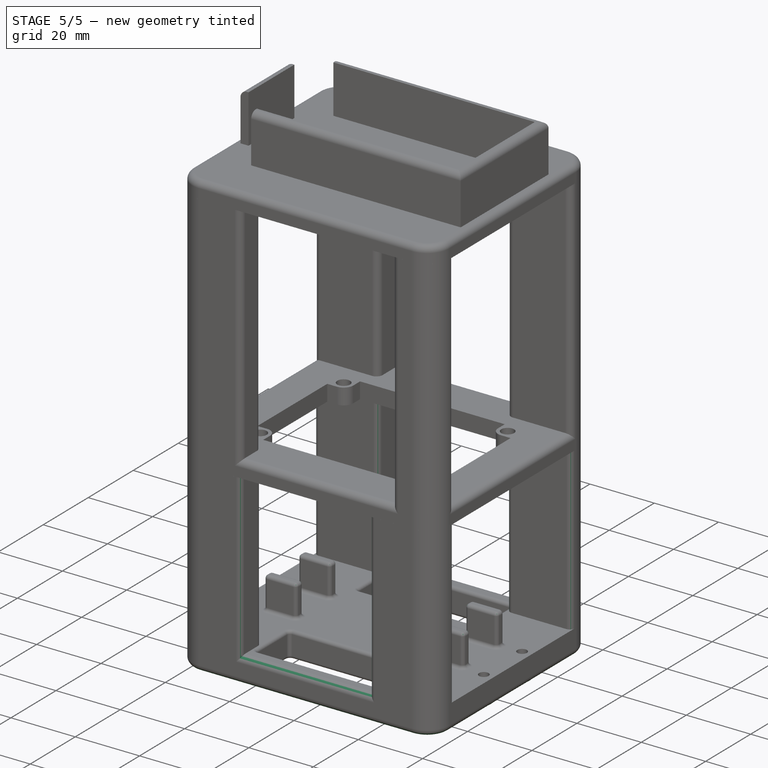
[diagram: stage 5 of 5 — iso view after this stage's code; geometry added in this stage tinted green]
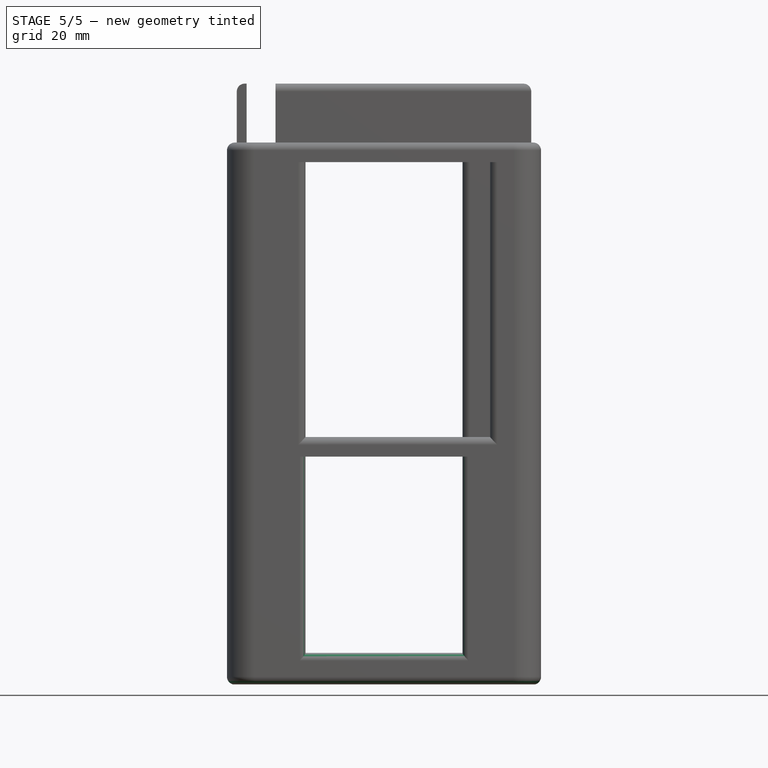
[diagram: stage 5 of 5 — front view after this stage's code; geometry added in this stage tinted green]
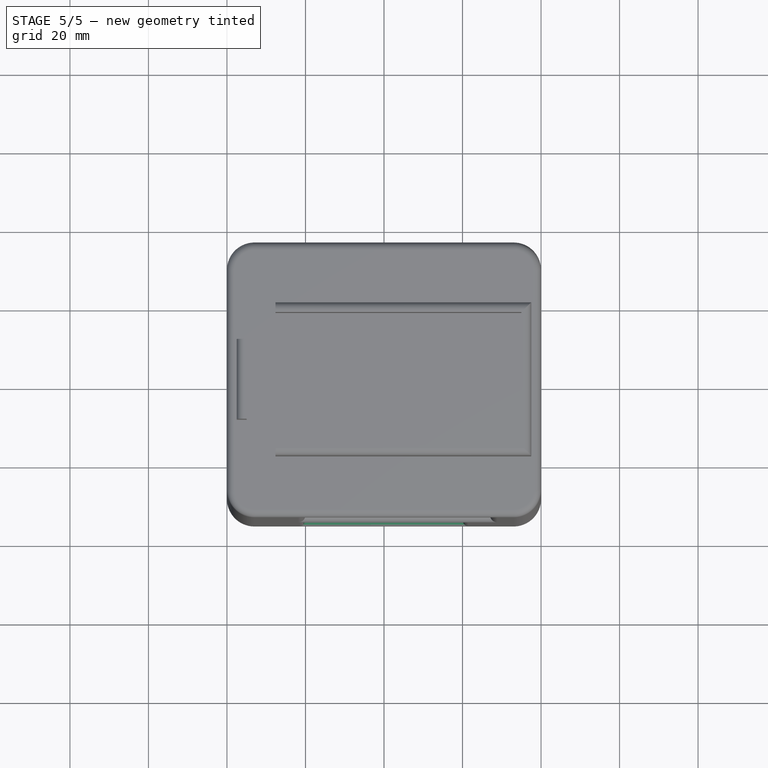
[diagram: stage 5 of 5 — top view after this stage's code; geometry added in this stage tinted green]
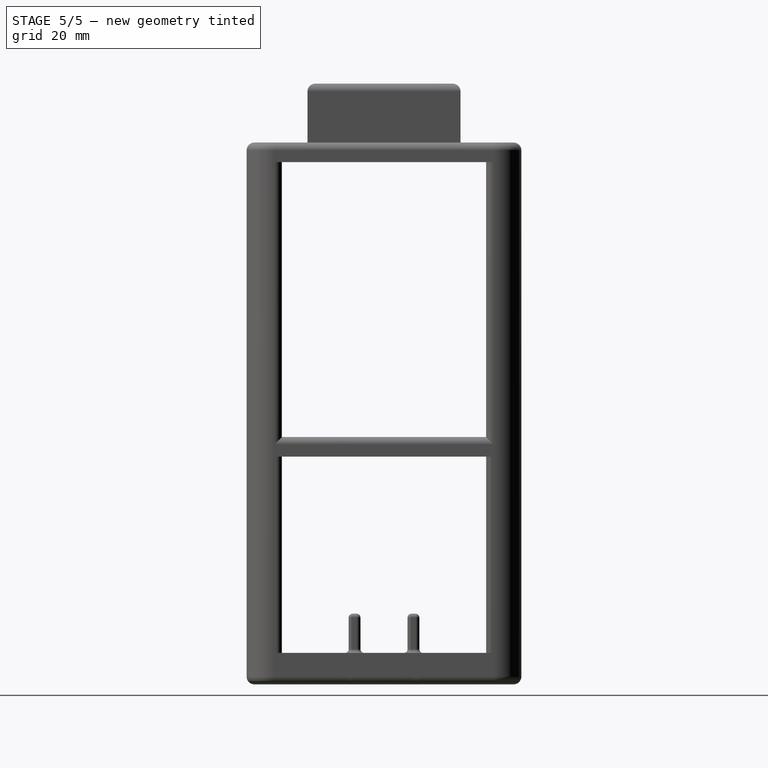
[diagram: stage 5 of 5 — right view after this stage's code; geometry added in this stage tinted green]
FEATURE [PartDesign::Fillet] Fillet
  Base = -> Pocket [Edge36,Edge39,Edge13,Edge17]
  BaseFeature = -> Pocket
  Radius = 2
FEATURE [PartDesign::Fillet] Fillet011
  Base = -> Fillet [Face41,Face38,Face42,Face45,Face34,Face37,Face30,Face33,Face39,Face40,Face43,Face31,Face35,Face44,Face36,Face32]
  BaseFeature = -> Fillet
  Radius = 1
FEATURE [PartDesign::Fillet] Fillet012
  Base = -> Fillet011 [Edge91,Edge73,Edge75,Edge93,Edge100,Edge98,Edge115,Edge119,Edge89,Edge78,Edge103,Edge117]
  BaseFeature = -> Fillet011
  Radius = 1.5
FEATURE [PartDesign::Fillet] Fillet013
  Base = -> Fillet012 [Face44,Face43,Face40,Face39,Face45,Face42,Face41,Face38]
  BaseFeature = -> Fillet012
  Radius = 0.999
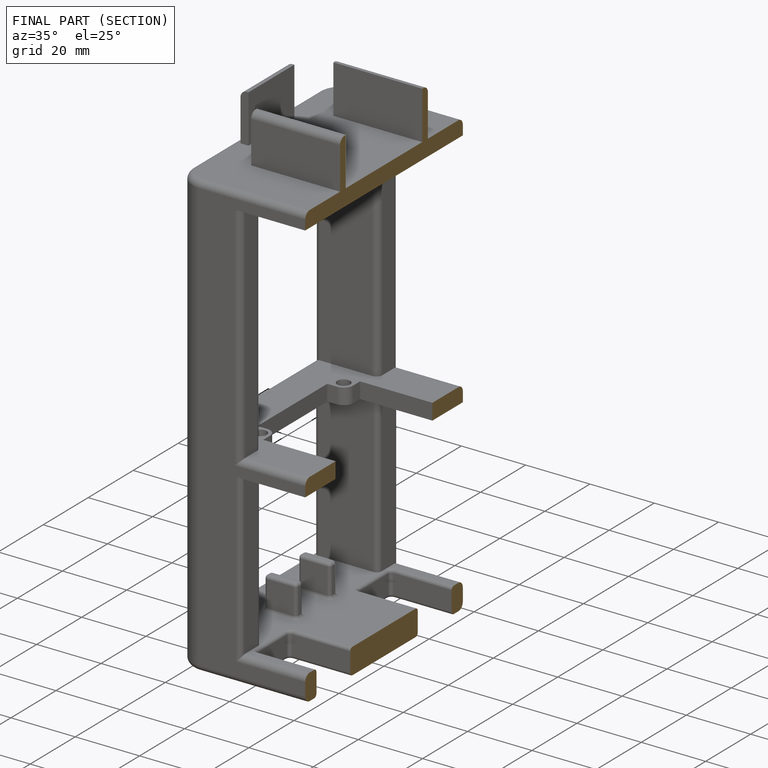
[diagram: finished part — half-section view (interior)]
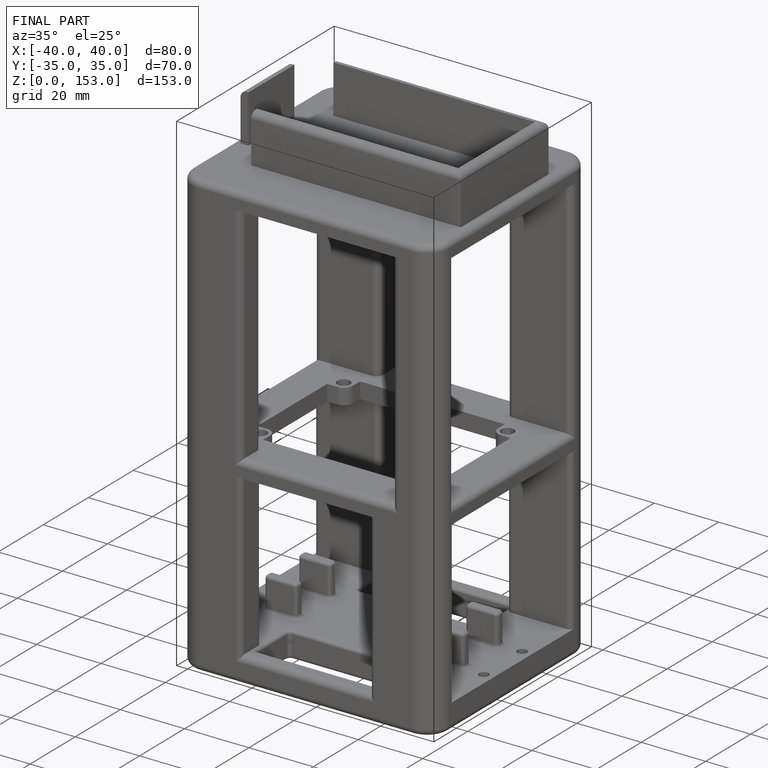
[diagram: finished part — iso view with bounding-box wireframe]
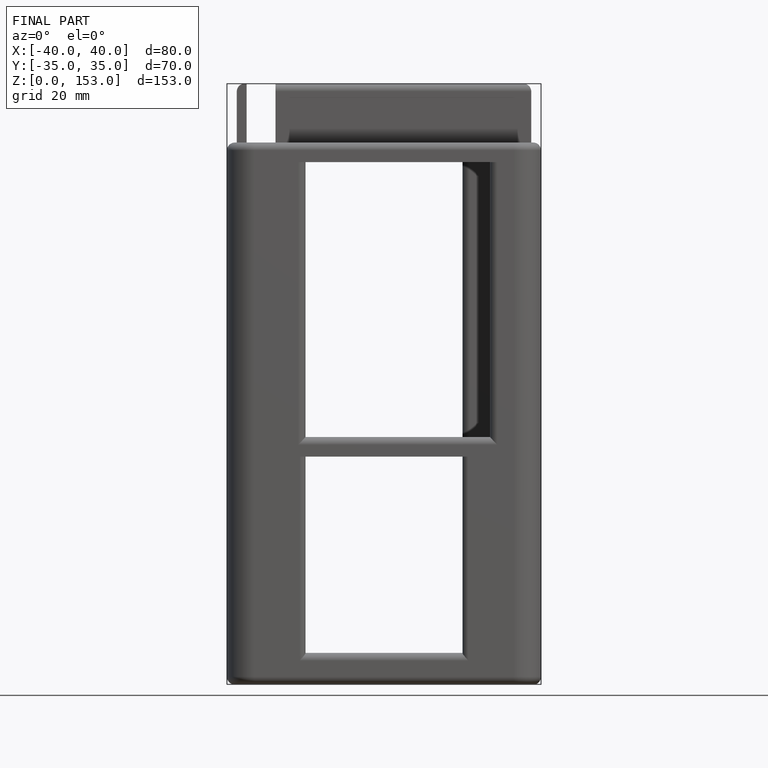
[diagram: finished part — front view with bounding-box wireframe]
